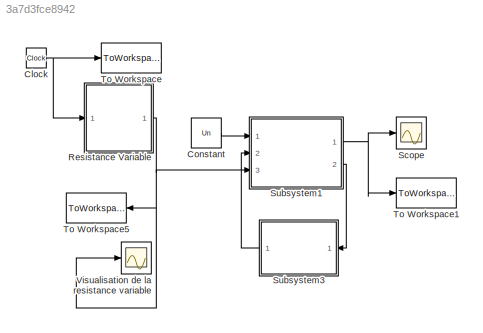
MODEL slx_3a7d3fce8942
KIND model
CONFIG AbsTol = auto
CONFIG EnableMultiTasking = off
CONFIG FixedStep = auto
CONFIG MaxStep = 1/(100*fn)
CONFIG MinStep = 1/(1000*fn)
CONFIG RelTol = 1e-3
CONFIG SampleTimeConstraint = Unconstrained
CONFIG Solver = VariableStepAuto
CONFIG SolverName = VariableStepAuto
CONFIG StartTime = 0.0
CONFIG StopTime = 0.8
BLOCK [Clock] Clock
BLOCK [Constant] Constant
  Value = Un
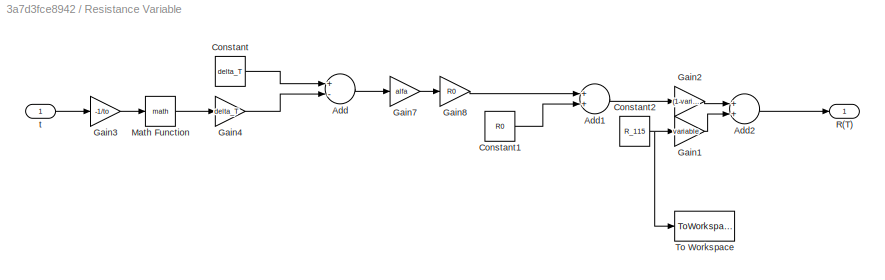
BLOCK [SubSystem] Resistance Variable
  Ports = [1, 1]
  RequestExecContextInheritance = off
BLOCK [Sum] Resistance Variable/Add
  InputSameDT = off
  Inputs = +-
  OutDataTypeStr = Inherit: Inherit via internal rule
  Ports = [2, 1]
  SaturateOnIntegerOverflow = off
BLOCK [Sum] Resistance Variable/Add1
  InputSameDT = off
  OutDataTypeStr = Inherit: Inherit via internal rule
  Ports = [2, 1]
  SaturateOnIntegerOverflow = off
BLOCK [Sum] Resistance Variable/Add2
  InputSameDT = off
  OutDataTypeStr = Inherit: Inherit via internal rule
  Ports = [2, 1]
  SaturateOnIntegerOverflow = off
BLOCK [Constant] Resistance Variable/Constant
  Value = delta_T
BLOCK [Constant] Resistance Variable/Constant1
  Value = R0
BLOCK [Constant] Resistance Variable/Constant2
  Value = R_115
BLOCK [Gain] Resistance Variable/Gain1
  Gain = variable
  OutDataTypeStr = Inherit: Inherit via internal rule
  ParamDataTypeStr = Inherit: Inherit via internal rule
  SaturateOnIntegerOverflow = off
BLOCK [Gain] Resistance Variable/Gain2
  Gain = (1-variable)
  OutDataTypeStr = Inherit: Inherit via internal rule
  ParamDataTypeStr = Inherit: Inherit via internal rule
  SaturateOnIntegerOverflow = off
BLOCK [Gain] Resistance Variable/Gain3
  Gain = -1/to
  OutDataTypeStr = Inherit: Inherit via internal rule
  ParamDataTypeStr = Inherit: Inherit via internal rule
  SaturateOnIntegerOverflow = off
BLOCK [Gain] Resistance Variable/Gain4
  Gain = delta_T
  OutDataTypeStr = Inherit: Inherit via internal rule
  ParamDataTypeStr = Inherit: Inherit via internal rule
  SaturateOnIntegerOverflow = off
BLOCK [Gain] Resistance Variable/Gain7
  Gain = alfa
  OutDataTypeStr = Inherit: Inherit via internal rule
  ParamDataTypeStr = Inherit: Inherit via internal rule
  SaturateOnIntegerOverflow = off
BLOCK [Gain] Resistance Variable/Gain8
  Gain = R0
  OutDataTypeStr = Inherit: Inherit via internal rule
  ParamDataTypeStr = Inherit: Inherit via internal rule
  SaturateOnIntegerOverflow = off
BLOCK [Math] Resistance Variable/Math Function
  Ports = [1, 1]
BLOCK [Outport] Resistance Variable/R(T)
  IconDisplay = Port number
BLOCK [ToWorkspace] Resistance Variable/To Workspace
  FixptAsFi = on
  MaxDataPoints = inf
  Ports = [1]
  SampleTime = -1
  Save2DSignal = 2-D array (concatenate along first dimension)
  VariableName = R_ref
BLOCK [Inport] Resistance Variable/t 
  IconDisplay = Port number
BLOCK [Scope] Scope
  Floating = off
  NumInputPorts = 1
  Ports = [1]
  ScopeSpecificationString = Simulink.scopes.TimeScopeBlockCfg('CurrentConfiguration', extmgr.ConfigurationSet(extmgr.Configuration('Core','General UI',true),extmgr.Configuration('Core','Source UI',true),extmgr.Configuration('Sources','WiredSimulink',true),extmgr.Configuration('Visuals','Time Domain',true,'SerializedDisplays',{struct('MinYLimReal','1.60205','MaxYLimReal','1.83747','YLabelReal','','MinYLimMag','1.60205','MaxYL...<+1377ch>
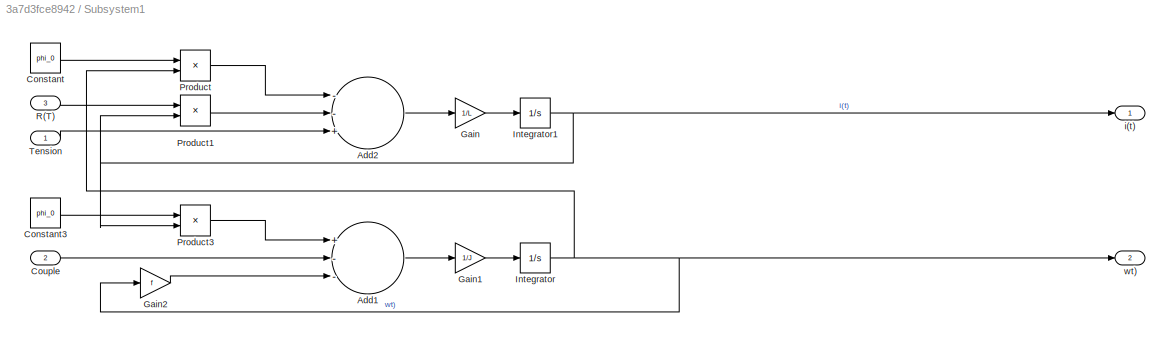
BLOCK [SubSystem] Subsystem1
  Ports = [3, 2]
  RequestExecContextInheritance = off
BLOCK [Sum] Subsystem1/Add1
  InputSameDT = off
  Inputs = +--
  OutDataTypeStr = Inherit: Inherit via internal rule
  Ports = [3, 1]
  SaturateOnIntegerOverflow = off
BLOCK [Sum] Subsystem1/Add2
  InputSameDT = off
  Inputs = --+
  OutDataTypeStr = Inherit: Inherit via internal rule
  Ports = [3, 1]
  SaturateOnIntegerOverflow = off
BLOCK [Constant] Subsystem1/Constant
  Value = phi_0
BLOCK [Constant] Subsystem1/Constant3
  Value = phi_0
BLOCK [Inport] Subsystem1/Couple
  IconDisplay = Port number
  Port = 2
BLOCK [Gain] Subsystem1/Gain
  Gain = 1/L
  OutDataTypeStr = Inherit: Inherit via internal rule
  ParamDataTypeStr = Inherit: Inherit via internal rule
  SaturateOnIntegerOverflow = off
BLOCK [Gain] Subsystem1/Gain1
  Gain = 1/J
  OutDataTypeStr = Inherit: Inherit via internal rule
  ParamDataTypeStr = Inherit: Inherit via internal rule
  SaturateOnIntegerOverflow = off
BLOCK [Gain] Subsystem1/Gain2
  Gain = f
  OutDataTypeStr = Inherit: Inherit via internal rule
  ParamDataTypeStr = Inherit: Inherit via internal rule
  SaturateOnIntegerOverflow = off
BLOCK [Integrator] Subsystem1/Integrator
  Ports = [1, 1]
BLOCK [Integrator] Subsystem1/Integrator1
  Ports = [1, 1]
BLOCK [Product] Subsystem1/Product
  InputSameDT = off
  OutDataTypeStr = Inherit: Inherit via internal rule
  Ports = [2, 1]
  RndMeth = Floor
  SaturateOnIntegerOverflow = off
BLOCK [Product] Subsystem1/Product1
  InputSameDT = off
  OutDataTypeStr = Inherit: Inherit via internal rule
  Ports = [2, 1]
  RndMeth = Floor
  SaturateOnIntegerOverflow = off
BLOCK [Product] Subsystem1/Product3
  InputSameDT = off
  OutDataTypeStr = Inherit: Inherit via internal rule
  Ports = [2, 1]
  RndMeth = Floor
  SaturateOnIntegerOverflow = off
BLOCK [Inport] Subsystem1/R(T) 
  IconDisplay = Port number
  Port = 3
BLOCK [Inport] Subsystem1/Tension
  IconDisplay = Port number
BLOCK [Outport] Subsystem1/i(t)
  IconDisplay = Port number
BLOCK [Outport] Subsystem1/wt)
  IconDisplay = Port number
  Port = 2
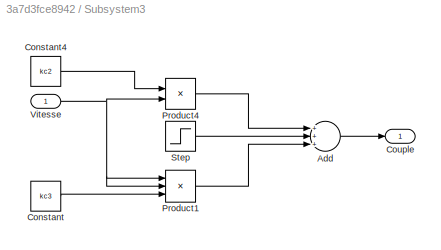
BLOCK [SubSystem] Subsystem3
  Ports = [1, 1]
  RequestExecContextInheritance = off
BLOCK [Sum] Subsystem3/Add
  InputSameDT = off
  Inputs = +++
  OutDataTypeStr = Inherit: Inherit via internal rule
  Ports = [3, 1]
  SaturateOnIntegerOverflow = off
BLOCK [Constant] Subsystem3/Constant
  Value = kc3
BLOCK [Constant] Subsystem3/Constant4
  Value = kc2
BLOCK [Outport] Subsystem3/Couple 
  IconDisplay = Port number
BLOCK [Product] Subsystem3/Product1
  InputSameDT = off
  Inputs = 3
  OutDataTypeStr = Inherit: Inherit via internal rule
  Ports = [3, 1]
  RndMeth = Floor
  SaturateOnIntegerOverflow = off
BLOCK [Product] Subsystem3/Product4
  InputSameDT = off
  OutDataTypeStr = Inherit: Inherit via internal rule
  Ports = [2, 1]
  RndMeth = Floor
  SaturateOnIntegerOverflow = off
BLOCK [Step] Subsystem3/Step
  After = kc1
  SampleTime = 0
  Time = 5
BLOCK [Inport] Subsystem3/Vitesse 
  IconDisplay = Port number
BLOCK [ToWorkspace] To Workspace
  FixptAsFi = on
  MaxDataPoints = inf
  Ports = [1]
  SampleTime = -1
  Save2DSignal = 2-D array (concatenate along first dimension)
  VariableName = t
BLOCK [ToWorkspace] To Workspace1
  FixptAsFi = on
  MaxDataPoints = inf
  Ports = [1]
  SampleTime = -1
  Save2DSignal = 2-D array (concatenate along first dimension)
  VariableName = mcc_bo
BLOCK [ToWorkspace] To Workspace5
  FixptAsFi = on
  MaxDataPoints = inf
  Ports = [1]
  SampleTime = -1
  Save2DSignal = 2-D array (concatenate along first dimension)
  VariableName = R_variable
BLOCK [Scope] Visualisation de la resistance variable
  Floating = off
  NumInputPorts = 1
  Ports = [1]
  ScopeSpecificationString = Simulink.scopes.TimeScopeBlockCfg('CurrentConfiguration', extmgr.ConfigurationSet(extmgr.Configuration('Core','General UI',true),extmgr.Configuration('Core','Source UI',true),extmgr.Configuration('Sources','WiredSimulink',true,'DataLoggingVariableName','ScopeData1'),extmgr.Configuration('Visuals','Time Domain',true,'SerializedDisplays',{struct('MinYLimReal','0.071','MaxYLimReal','0.091','YLabelRea...<+1404ch>
NET Clock:1 -> Resistance Variable:1, To Workspace:1
LINE Constant:1 -> Subsystem1:1
LINE Resistance Variable/Add1:1 -> Resistance Variable/Gain2:1
LINE Resistance Variable/Add2:1 -> Resistance Variable/R(T):1
LINE Resistance Variable/Add:1 -> Resistance Variable/Gain7:1
LINE Resistance Variable/Constant1:1 -> Resistance Variable/Add1:2
NET Resistance Variable/Constant2:1 -> Resistance Variable/Gain1:1, Resistance Variable/To Workspace:1
LINE Resistance Variable/Constant:1 -> Resistance Variable/Add:1
LINE Resistance Variable/Gain1:1 -> Resistance Variable/Add2:2
LINE Resistance Variable/Gain2:1 -> Resistance Variable/Add2:1
LINE Resistance Variable/Gain3:1 -> Resistance Variable/Math Function:1
LINE Resistance Variable/Gain4:1 -> Resistance Variable/Add:2
LINE Resistance Variable/Gain7:1 -> Resistance Variable/Gain8:1
LINE Resistance Variable/Gain8:1 -> Resistance Variable/Add1:1
LINE Resistance Variable/Math Function:1 -> Resistance Variable/Gain4:1
LINE Resistance Variable/t :1 -> Resistance Variable/Gain3:1
NET Resistance Variable:1 -> Subsystem1:3, To Workspace5:1, Visualisation de la resistance variable:1
LINE Subsystem1/Add1:1 -> Subsystem1/Gain1:1
LINE Subsystem1/Add2:1 -> Subsystem1/Gain:1
LINE Subsystem1/Constant3:1 -> Subsystem1/Product3:1
LINE Subsystem1/Constant:1 -> Subsystem1/Product:1
LINE Subsystem1/Couple:1 -> Subsystem1/Add1:2
LINE Subsystem1/Gain1:1 -> Subsystem1/Integrator:1
LINE Subsystem1/Gain2:1 -> Subsystem1/Add1:3
LINE Subsystem1/Gain:1 -> Subsystem1/Integrator1:1
NET Subsystem1/Integrator1:1 -> Subsystem1/Product1:2, Subsystem1/Product3:2, Subsystem1/i(t):1
NET Subsystem1/Integrator:1 -> Subsystem1/Gain2:1, Subsystem1/Product:2, Subsystem1/wt):1
LINE Subsystem1/Product1:1 -> Subsystem1/Add2:2
LINE Subsystem1/Product3:1 -> Subsystem1/Add1:1
LINE Subsystem1/Product:1 -> Subsystem1/Add2:1
LINE Subsystem1/R(T) :1 -> Subsystem1/Product1:1
LINE Subsystem1/Tension:1 -> Subsystem1/Add2:3
NET Subsystem1:1 -> Scope:1, To Workspace1:1
LINE Subsystem1:2 -> Subsystem3:1
LINE Subsystem3/Add:1 -> Subsystem3/Couple :1
LINE Subsystem3/Constant4:1 -> Subsystem3/Product4:1
LINE Subsystem3/Constant:1 -> Subsystem3/Product1:3
LINE Subsystem3/Product1:1 -> Subsystem3/Add:3
LINE Subsystem3/Product4:1 -> Subsystem3/Add:1
LINE Subsystem3/Step:1 -> Subsystem3/Add:2
NET Subsystem3/Vitesse :1 -> Subsystem3/Product1:1, Subsystem3/Product1:2, Subsystem3/Product4:2
LINE Subsystem3:1 -> Subsystem1:2
note: NET lines group one-source signal fan-out (src -> all destinations, sorted); 1:1 wires keep LINE
